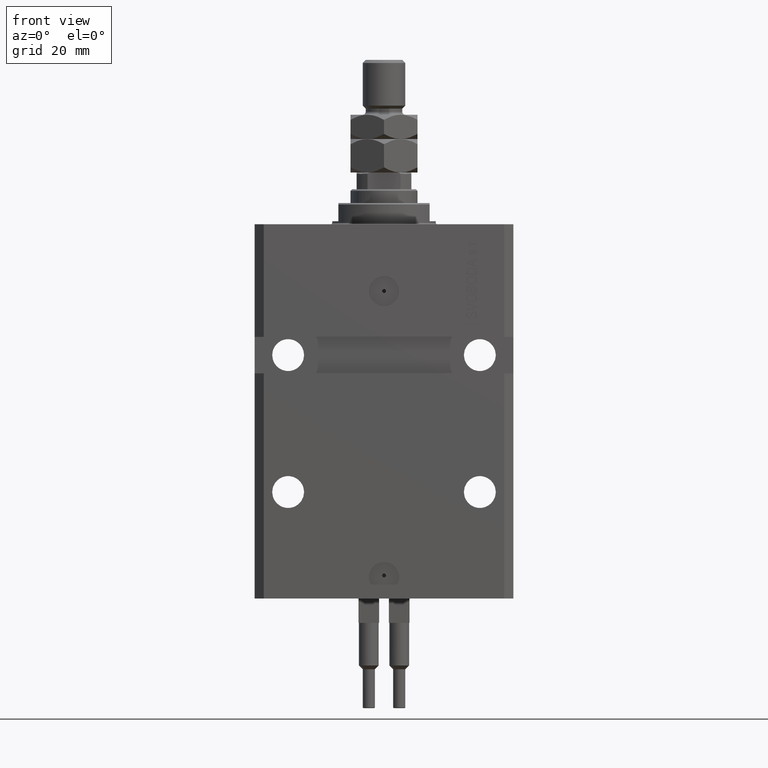
[diagram: clean part render]
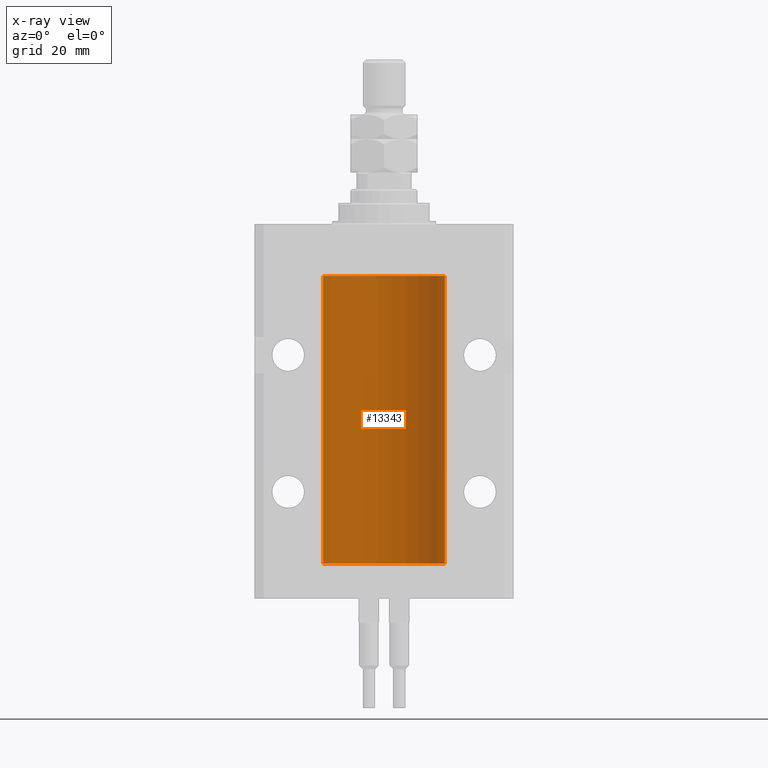
[diagram: x-ray — body ghosted, one internal face saturated and labeled with its STEP entity id]
A machine part, front view, then the same camera in x-ray: the body is ghosted and one INTERNAL B-rep face — a face not visible from any outside direction — is saturated and labeled: STEP entity #13343.
In plain terms, the highlighted cylindrical surface (partial cylindrical patch) has radius 20 mm, axis along (0, 0, 1).
Its self-contained STEP definition (entity closure, byte-faithful):
#88 = VECTOR ( 'NONE', #36337, 1000.000000000000000 ) ;
#581 = VERTEX_POINT ( 'NONE', #996 ) ;
#996 = CARTESIAN_POINT ( 'NONE',  ( 20.00000000000000000, 0.000000000000000000, -17.00000000000000000 ) ) ;
#1124 = CARTESIAN_POINT ( 'NONE',  ( -20.00000000000010303, 3.580159290815452135E-13, -109.6250000000033253 ) ) ;
#1512 = LINE ( 'NONE', #40349, #38477 ) ;
#2710 = VERTEX_POINT ( 'NONE', #9108 ) ;
#3022 = CARTESIAN_POINT ( 'NONE',  ( -20.00000000000010303, 3.580159290815452135E-13, -109.6250000000033253 ) ) ;
#3024 = VERTEX_POINT ( 'NONE', #18432 ) ;
#3881 = CARTESIAN_POINT ( 'NONE',  ( -20.00000000000000000, -2.867584836844214272E-15, -23.37500000000000000 ) ) ;
#4019 = VERTEX_POINT ( 'NONE', #47802 ) ;
#4392 = AXIS2_PLACEMENT_3D ( 'NONE', #30007, #49406, #25684 ) ;
#5206 = CARTESIAN_POINT ( 'NONE',  ( -19.99638934703457593, 0.3843678041337614260, -108.5004636297810094 ) ) ;
#6336 = EDGE_CURVE ( 'NONE', #581, #2710, #13121, .T. ) ;
#6655 = CARTESIAN_POINT ( 'NONE',  ( -20.00000000000000000, 2.449293598294706513E-15, -111.5999999999999943 ) ) ;
#7186 = EDGE_CURVE ( 'NONE', #11874, #4019, #40069, .T. ) ;
#7746 = EDGE_CURVE ( 'NONE', #43287, #2710, #40171, .T. ) ;
#9020 = EDGE_CURVE ( 'NONE', #13985, #3024, #1512, .T. ) ;
#9108 = CARTESIAN_POINT ( 'NONE',  ( -20.00000000000000000, 2.449293598294706513E-15, -17.00000000000000000 ) ) ;
#9288 = CARTESIAN_POINT ( 'NONE',  ( -20.00000000000000355, 0.1631688615953337806, -109.6249999999998721 ) ) ;
#9898 = CARTESIAN_POINT ( 'NONE',  ( -19.99253506710754991, 0.5587120480776751608, -24.32511620830248589 ) ) ;
#10095 = FACE_OUTER_BOUND ( 'NONE', #29285, .T. ) ;
#10385 = CARTESIAN_POINT ( 'NONE',  ( -20.00000000000000000, -2.867584836844214272E-15, -23.37500000000000000 ) ) ;
#10833 = CYLINDRICAL_SURFACE ( 'NONE', #4392, 20.00000000000000000 ) ;
#11067 = CARTESIAN_POINT ( 'NONE',  ( 20.00000000000000000, 0.000000000000000000, -111.5999999999999943 ) ) ;
#11874 = VERTEX_POINT ( 'NONE', #11067 ) ;
#13121 = CIRCLE ( 'NONE', #30245, 20.00000000000000000 ) ;
#13343 = ADVANCED_FACE ( 'NONE', ( #10095 ), #10833, .F. ) ;
#13368 = CARTESIAN_POINT ( 'NONE',  ( -19.99023018003212471, 0.6250578794725484277, -109.1628480970496895 ) ) ;
#13985 = VERTEX_POINT ( 'NONE', #43458 ) ;
#14227 = CARTESIAN_POINT ( 'NONE',  ( -19.99769349528941120, 0.3253804398728645242, -24.55855820727680339 ) ) ;
#14466 = CARTESIAN_POINT ( 'NONE',  ( -19.99999999999999645, 0.08259581631026780002, -23.37500000000000000 ) ) ;
#14641 = ORIENTED_EDGE ( 'NONE', *, *, #9020, .F. ) ;
#14733 = VECTOR ( 'NONE', #26062, 1000.000000000000000 ) ;
#14774 = AXIS2_PLACEMENT_3D ( 'NONE', #47881, #31564, #43026 ) ;
#15976 = ORIENTED_EDGE ( 'NONE', *, *, #6336, .T. ) ;
#17095 = DIRECTION ( 'NONE',  ( -0.000000000000000000, -0.000000000000000000, 1.000000000000000000 ) ) ;
#18432 = CARTESIAN_POINT ( 'NONE',  ( -20.00000000000010303, 3.580159278407742946E-13, -24.62500000000332889 ) ) ;
#18543 = CARTESIAN_POINT ( 'NONE',  ( -19.99947377218718714, 0.1636439183262877461, -23.39126364004656011 ) ) ;
#19349 = ORIENTED_EDGE ( 'NONE', *, *, #46010, .F. ) ;
#20756 = CARTESIAN_POINT ( 'NONE',  ( -20.00000000000000000, 2.449293598294706513E-15, -111.5999999999999943 ) ) ;
#20789 = CARTESIAN_POINT ( 'NONE',  ( -19.99256581701871838, 0.5573276956901952461, -108.6734856577094916 ) ) ;
#21403 = CARTESIAN_POINT ( 'NONE',  ( -19.99638934703457593, 0.3843678041337688644, -23.50046362978100944 ) ) ;
#22137 = CARTESIAN_POINT ( 'NONE',  ( -20.00000000000000000, 0.1631688615953320320, -24.62499999999985434 ) ) ;
#23404 = VECTOR ( 'NONE', #44892, 1000.000000000000000 ) ;
#23852 = VERTEX_POINT ( 'NONE', #3022 ) ;
#24122 = CARTESIAN_POINT ( 'NONE',  ( -20.00000000000000000, -1.494965790691426527E-14, -108.3750000000000000 ) ) ;
#25137 = CARTESIAN_POINT ( 'NONE',  ( 0.000000000000000000, 0.000000000000000000, -17.00000000000000000 ) ) ;
#25684 = DIRECTION ( 'NONE',  ( 1.000000000000000000, 0.000000000000000000, 0.000000000000000000 ) ) ;
#25731 = CARTESIAN_POINT ( 'NONE',  ( -20.00000000000010303, 3.580159278407742946E-13, -24.62500000000332889 ) ) ;
#26062 = DIRECTION ( 'NONE',  ( -0.000000000000000000, -0.000000000000000000, 1.000000000000000000 ) ) ;
#26773 = B_SPLINE_CURVE_WITH_KNOTS ( 'NONE', 3,
 ( #24122, #32800, #39439, #48350, #5206, #20789, #43256, #13368, #36124, #32547, #9288, #1124 ),
 .UNSPECIFIED., .F., .F.,
 ( 4, 2, 2, 2, 2, 4 ),
 ( 1.555867690894744095E-18, 0.0002442693137305176681, 0.0004885386274610337099, 0.0009770772549220949586, 0.001465615882383156099, 0.001954154509844217673 ),
 .UNSPECIFIED. ) ;
#27882 = EDGE_CURVE ( 'NONE', #11874, #581, #28837, .T. ) ;
#28686 = ORIENTED_EDGE ( 'NONE', *, *, #7186, .F. ) ;
#28837 = LINE ( 'NONE', #44402, #23404 ) ;
#29285 = EDGE_LOOP ( 'NONE', ( #19349, #28686, #47699, #15976, #30791, #37175, #14641, #39716 ) ) ;
#29467 = DIRECTION ( 'NONE',  ( 1.000000000000000000, 0.000000000000000000, 0.000000000000000000 ) ) ;
#30007 = CARTESIAN_POINT ( 'NONE',  ( 0.000000000000000000, 0.000000000000000000, -111.5999999999999943 ) ) ;
#30245 = AXIS2_PLACEMENT_3D ( 'NONE', #25137, #44537, #29467 ) ;
#30791 = ORIENTED_EDGE ( 'NONE', *, *, #7746, .F. ) ;
#31564 = DIRECTION ( 'NONE',  ( 0.000000000000000000, 0.000000000000000000, 1.000000000000000000 ) ) ;
#32547 = CARTESIAN_POINT ( 'NONE',  ( -19.99769349528941476, 0.3253804398728720182, -109.5585582072768318 ) ) ;
#32800 = CARTESIAN_POINT ( 'NONE',  ( -19.99999999999999289, 0.08259581631025748882, -108.3749999999999716 ) ) ;
#34140 = CARTESIAN_POINT ( 'NONE',  ( -19.99256581701871482, 0.5573276956902001311, -23.67348565770948809 ) ) ;
#36124 = CARTESIAN_POINT ( 'NONE',  ( -19.99253506710754991, 0.5587120480776772702, -109.3251162083024894 ) ) ;
#36337 = DIRECTION ( 'NONE',  ( -0.000000000000000000, -0.000000000000000000, 1.000000000000000000 ) ) ;
#36980 = CARTESIAN_POINT ( 'NONE',  ( -19.99023018003212471, 0.6250578794725500931, -24.16284809704970371 ) ) ;
#37175 = ORIENTED_EDGE ( 'NONE', *, *, #48393, .T. ) ;
#38477 = VECTOR ( 'NONE', #17095, 1000.000000000000000 ) ;
#39439 = CARTESIAN_POINT ( 'NONE',  ( -19.99947377218718358, 0.1636439183262759223, -108.3912636400465459 ) ) ;
#39716 = ORIENTED_EDGE ( 'NONE', *, *, #49652, .T. ) ;
#40069 = CIRCLE ( 'NONE', #14774, 20.00000000000000000 ) ;
#40171 = LINE ( 'NONE', #20756, #88 ) ;
#40349 = CARTESIAN_POINT ( 'NONE',  ( -20.00000000000000000, 2.449293598294706513E-15, -111.5999999999999943 ) ) ;
#43026 = DIRECTION ( 'NONE',  ( 1.000000000000000000, 0.000000000000000000, 0.000000000000000000 ) ) ;
#43256 = CARTESIAN_POINT ( 'NONE',  ( -19.99023380173165876, 0.6249420416828411762, -108.8367079305639322 ) ) ;
#43287 = VERTEX_POINT ( 'NONE', #3881 ) ;
#43458 = CARTESIAN_POINT ( 'NONE',  ( -20.00000000000000000, -1.494965790691426527E-14, -108.3750000000000000 ) ) ;
#43993 = B_SPLINE_CURVE_WITH_KNOTS ( 'NONE', 3,
 ( #10385, #14466, #18543, #48706, #21403, #34140, #49696, #36980, #9898, #14227, #22137, #25731 ),
 .UNSPECIFIED., .F., .F.,
 ( 4, 2, 2, 2, 2, 4 ),
 ( 5.848927291235706941E-19, 0.0002442693137305304075, 0.0004885386274610601645, 0.0009770772549221123059, 0.001465615882383164339, 0.001954154509844215938 ),
 .UNSPECIFIED. ) ;
#44402 = CARTESIAN_POINT ( 'NONE',  ( 20.00000000000000000, 0.000000000000000000, -111.5999999999999943 ) ) ;
#44537 = DIRECTION ( 'NONE',  ( 0.000000000000000000, 0.000000000000000000, 1.000000000000000000 ) ) ;
#44892 = DIRECTION ( 'NONE',  ( -0.000000000000000000, -0.000000000000000000, 1.000000000000000000 ) ) ;
#45226 = LINE ( 'NONE', #6655, #14733 ) ;
#46010 = EDGE_CURVE ( 'NONE', #4019, #23852, #45226, .T. ) ;
#47699 = ORIENTED_EDGE ( 'NONE', *, *, #27882, .T. ) ;
#47802 = CARTESIAN_POINT ( 'NONE',  ( -20.00000000000000000, 2.449293598294706513E-15, -111.5999999999999943 ) ) ;
#47881 = CARTESIAN_POINT ( 'NONE',  ( 0.000000000000000000, 0.000000000000000000, -111.5999999999999943 ) ) ;
#48350 = CARTESIAN_POINT ( 'NONE',  ( -19.99766197842594906, 0.3150331617867563327, -108.4540207010250299 ) ) ;
#48393 = EDGE_CURVE ( 'NONE', #43287, #3024, #43993, .T. ) ;
#48706 = CARTESIAN_POINT ( 'NONE',  ( -19.99766197842594906, 0.3150331617867667688, -23.45402070102505476 ) ) ;
#49406 = DIRECTION ( 'NONE',  ( -0.000000000000000000, -0.000000000000000000, 1.000000000000000000 ) ) ;
#49652 = EDGE_CURVE ( 'NONE', #13985, #23852, #26773, .T. ) ;
#49696 = CARTESIAN_POINT ( 'NONE',  ( -19.99023380173166231, 0.6249420416828462832, -23.83670793056396064 ) ) ;